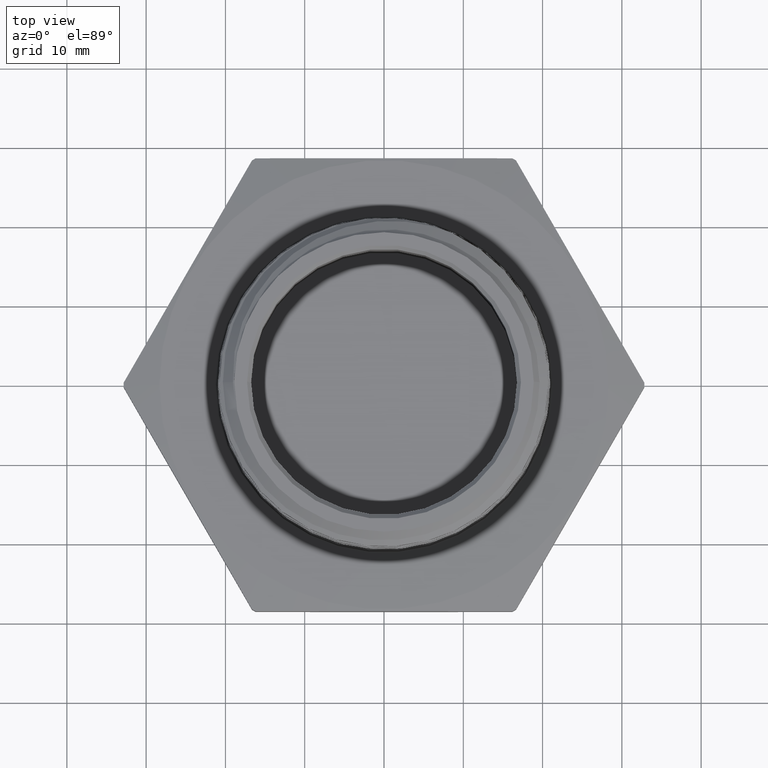
[diagram: clean part render]
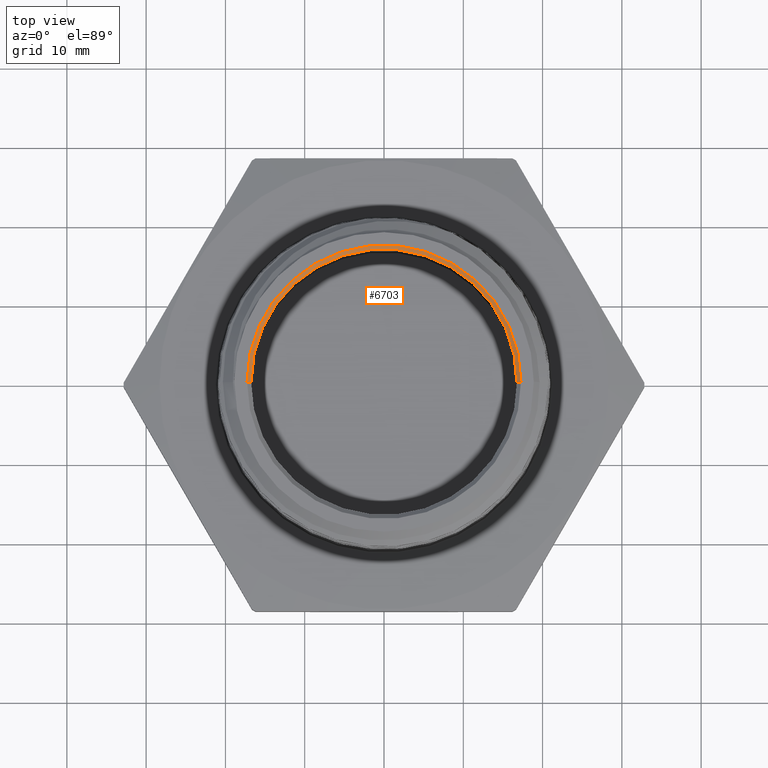
[diagram: same view with one face highlighted and labeled with its STEP entity id]
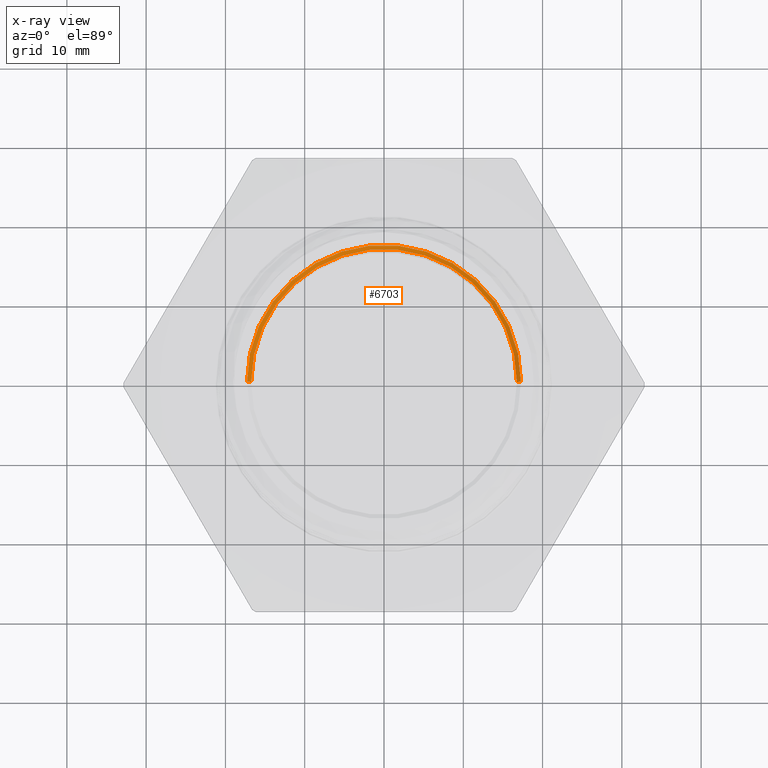
[diagram: x-ray of the same camera — body ghosted, the highlighted face saturated]
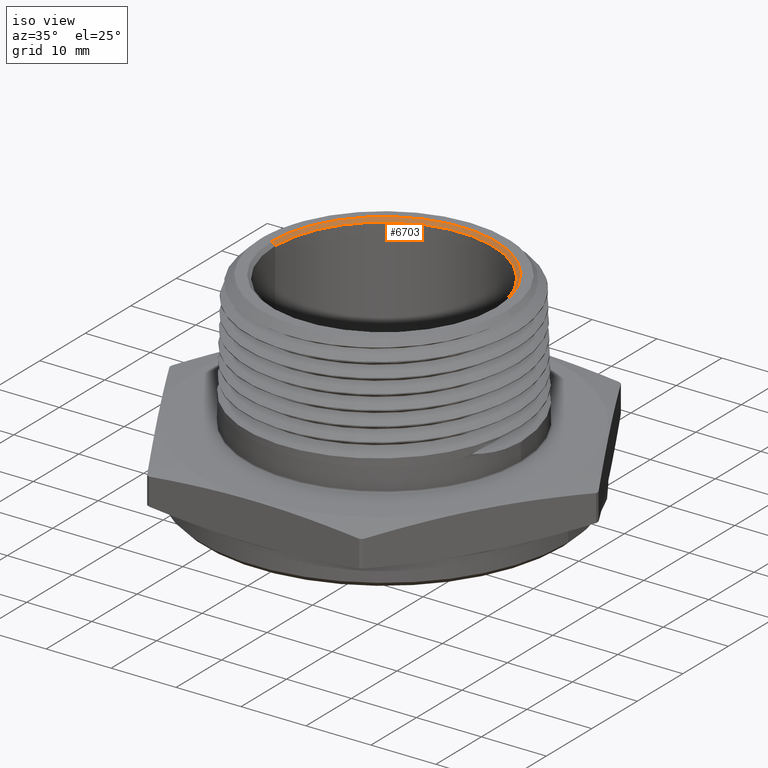
[diagram: same view with one face highlighted and labeled with its STEP entity id]
A machine part, top view. The second image highlights one B-rep face of the part: STEP entity #6703.
The next image is the same camera in x-ray: the body ghosted, the highlighted face saturated — about 0% of this face is hidden behind the body in this view.
A second angle (iso view) of the same face is appended — the face is thin or edge-on in the first view.
In plain terms, the highlighted conical surface has half-angle 45 deg.
Its self-contained STEP definition (entity closure, byte-faithful):
#22 = CIRCLE ( 'NONE', #4152, 0.6799999999999999400 ) ;
#68 = LINE ( 'NONE', #4538, #70 ) ;
#70 = VECTOR ( 'NONE', #4561, 39.37007874015748100 ) ;
#73 = LINE ( 'NONE', #4565, #75 ) ;
#75 = VECTOR ( 'NONE', #4566, 39.37007874015748100 ) ;
#197 = FACE_OUTER_BOUND ( 'NONE', #2514, .T. ) ;
#207 = CONICAL_SURFACE ( 'NONE', #277, 0.6599999999999999200, 0.7853981633974482800 ) ;
#277 = AXIS2_PLACEMENT_3D ( 'NONE', #5809, #5810, #5808 ) ;
#360 = ORIENTED_EDGE ( 'NONE', *, *, #4043, .T. ) ;
#361 = ORIENTED_EDGE ( 'NONE', *, *, #3977, .F. ) ;
#379 = ORIENTED_EDGE ( 'NONE', *, *, #4088, .F. ) ;
#380 = ORIENTED_EDGE ( 'NONE', *, *, #4084, .T. ) ;
#2514 = EDGE_LOOP ( 'NONE', ( #379, #361, #380, #360 ) ) ;
#3977 = EDGE_CURVE ( 'NONE', #6219, #6218, #4798, .T. ) ;
#4043 = EDGE_CURVE ( 'NONE', #6216, #6217, #22, .T. ) ;
#4084 = EDGE_CURVE ( 'NONE', #6219, #6216, #68, .T. ) ;
#4088 = EDGE_CURVE ( 'NONE', #6218, #6217, #73, .T. ) ;
#4136 = AXIS2_PLACEMENT_3D ( 'NONE', #6966, #6965, #6960 ) ;
#4152 = AXIS2_PLACEMENT_3D ( 'NONE', #4263, #4264, #4265 ) ;
#4263 = CARTESIAN_POINT ( 'NONE',  ( 3.673940397442165500E-018, 0.0000000000000000000, 1.050000000000000000 ) ) ;
#4264 = DIRECTION ( 'NONE',  ( -0.0000000000000000000, -0.0000000000000000000, 1.000000000000000000 ) ) ;
#4265 = DIRECTION ( 'NONE',  ( 1.000000000000000000, 0.0000000000000000000, 0.0000000000000000000 ) ) ;
#4538 = CARTESIAN_POINT ( 'NONE',  ( 0.6599999999999999200, 0.0000000000000000000, 1.030000000000000000 ) ) ;
#4561 = DIRECTION ( 'NONE',  ( 0.7071067811865474600, 0.0000000000000000000, 0.7071067811865475700 ) ) ;
#4565 = CARTESIAN_POINT ( 'NONE',  ( -0.6599999999999999200, 8.082668874372529300E-017, 1.030000000000000000 ) ) ;
#4566 = DIRECTION ( 'NONE',  ( -0.7071067811865474600, 8.659560562354931600E-017, 0.7071067811865475700 ) ) ;
#4798 = CIRCLE ( 'NONE', #4136, 0.6599999999999999200 ) ;
#5560 = CARTESIAN_POINT ( 'NONE',  ( -0.6599999999999999200, 8.082668874372529300E-017, 1.030000000000000000 ) ) ;
#5562 = CARTESIAN_POINT ( 'NONE',  ( 0.6799999999999999400, 0.0000000000000000000, 1.050000000000000000 ) ) ;
#5563 = CARTESIAN_POINT ( 'NONE',  ( -0.6799999999999999400, 8.327598234202001900E-017, 1.050000000000000000 ) ) ;
#5564 = CARTESIAN_POINT ( 'NONE',  ( 0.6599999999999999200, 0.0000000000000000000, 1.030000000000000000 ) ) ;
#5808 = DIRECTION ( 'NONE',  ( 1.000000000000000000, 0.0000000000000000000, 0.0000000000000000000 ) ) ;
#5809 = CARTESIAN_POINT ( 'NONE',  ( 3.673940397442165500E-018, 0.0000000000000000000, 1.030000000000000000 ) ) ;
#5810 = DIRECTION ( 'NONE',  ( -0.0000000000000000000, -0.0000000000000000000, 1.000000000000000000 ) ) ;
#6216 = VERTEX_POINT ( 'NONE', #5562 ) ;
#6217 = VERTEX_POINT ( 'NONE', #5563 ) ;
#6218 = VERTEX_POINT ( 'NONE', #5560 ) ;
#6219 = VERTEX_POINT ( 'NONE', #5564 ) ;
#6703 = ADVANCED_FACE ( 'NONE', ( #197 ), #207, .F. ) ;
#6960 = DIRECTION ( 'NONE',  ( 1.000000000000000000, 0.0000000000000000000, 0.0000000000000000000 ) ) ;
#6965 = DIRECTION ( 'NONE',  ( -0.0000000000000000000, -0.0000000000000000000, 1.000000000000000000 ) ) ;
#6966 = CARTESIAN_POINT ( 'NONE',  ( 3.673940397442165500E-018, 0.0000000000000000000, 1.030000000000000000 ) ) ;